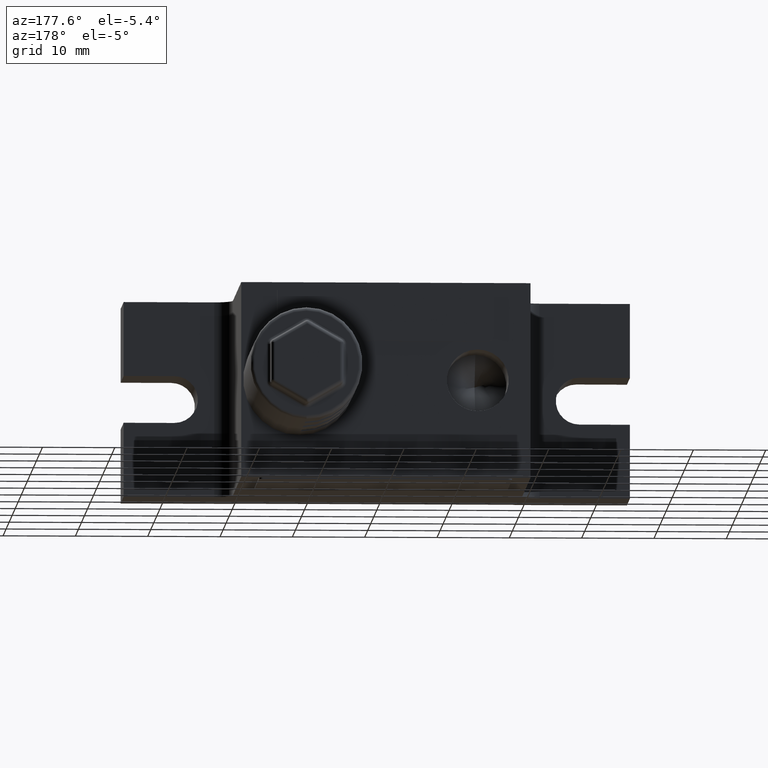
[diagram: clean part render]
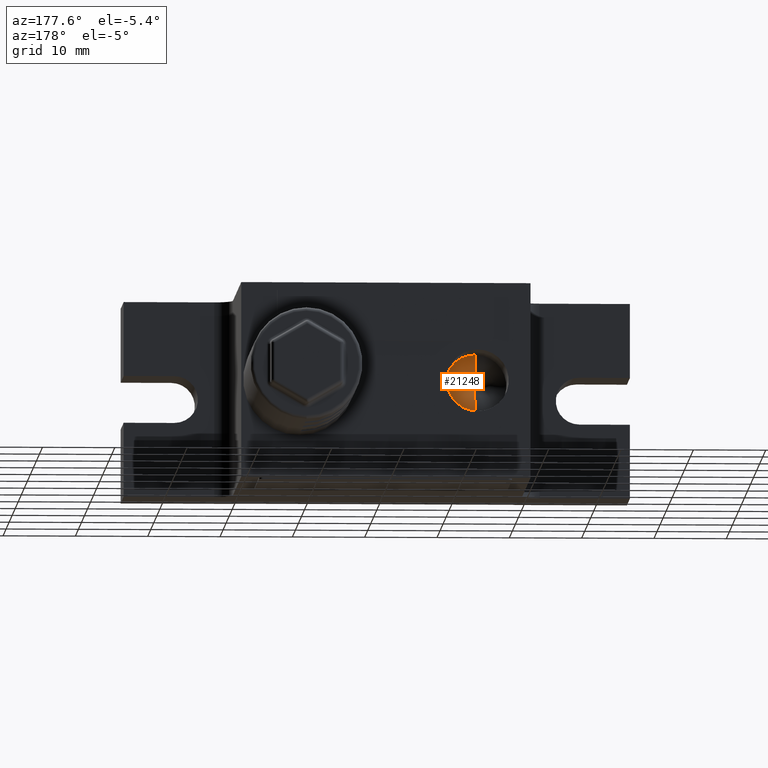
[diagram: same view with one face highlighted and labeled with its STEP entity id]
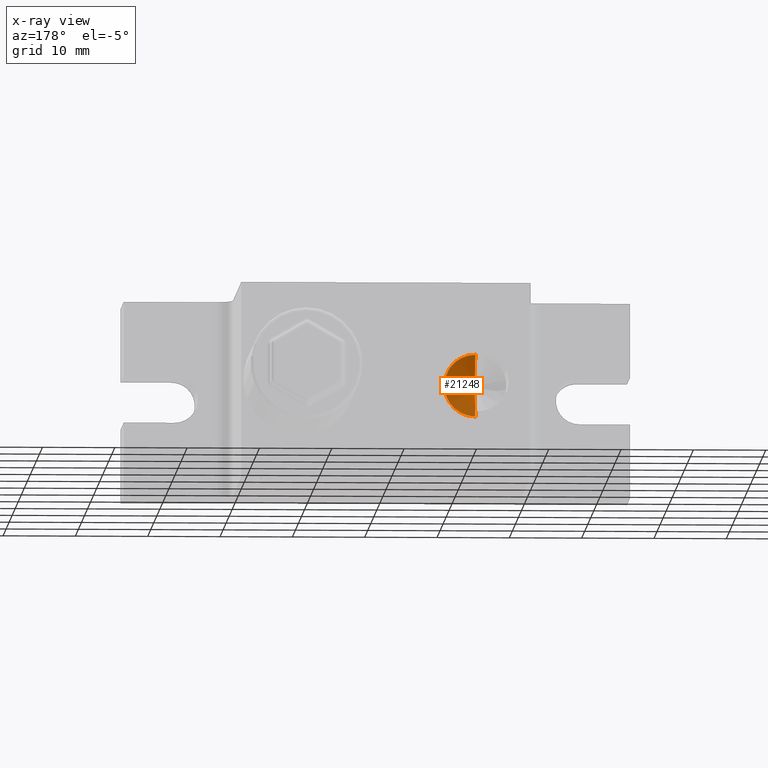
[diagram: x-ray of the same camera — body ghosted, the highlighted face saturated]
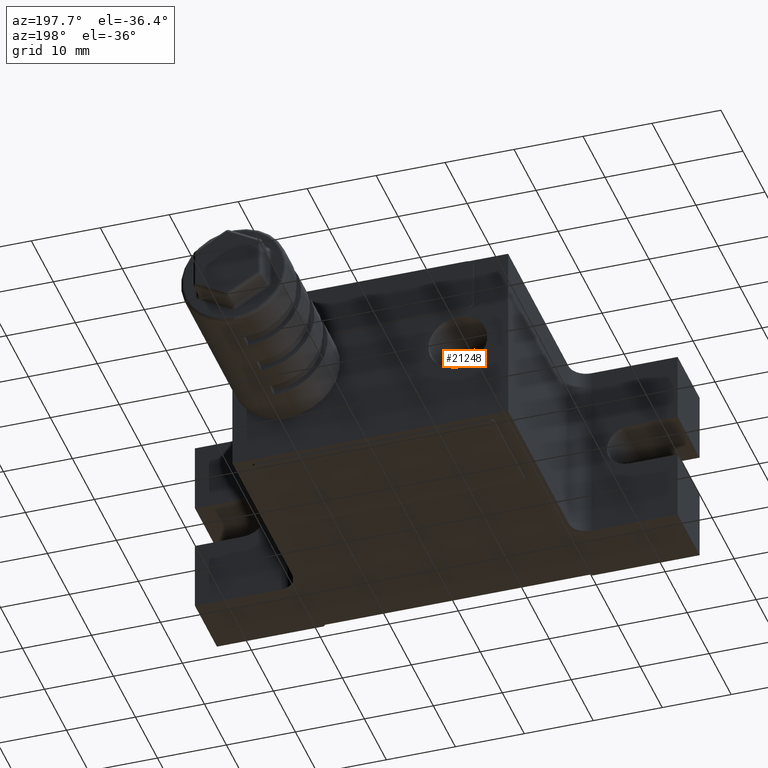
[diagram: same view with one face highlighted and labeled with its STEP entity id]
A machine part, auxiliary view. The second image highlights one B-rep face of the part: STEP entity #21248.
The next image is the same camera in x-ray: the body ghosted, the highlighted face saturated — about 0% of this face is hidden behind the body in this view.
A second angle (auxiliary view) of the same face is appended — the face is thin or edge-on in the first view.
In plain terms, the highlighted conical surface has half-angle 59 deg.
Its self-contained STEP definition (entity closure, byte-faithful):
#32 = EDGE_CURVE ( 'NONE', #14881, #23041, #12082, .T. ) ;
#237 = CARTESIAN_POINT ( 'NONE',  ( -12.69999999999999900, 12.00000000000000000, -4.283000000000000400 ) ) ;
#502 = CARTESIAN_POINT ( 'NONE',  ( -12.69999999999999900, 12.00000000000000000, 0.0000000000000000000 ) ) ;
#1025 = EDGE_CURVE ( 'NONE', #7732, #23041, #9744, .T. ) ;
#1799 = DIRECTION ( 'NONE',  ( 1.049727191138618200E-016, 0.5150380749100549300, -0.8571673007021118900 ) ) ;
#2380 = AXIS2_PLACEMENT_3D ( 'NONE', #20241, #18403, #3966 ) ;
#2454 = CARTESIAN_POINT ( 'NONE',  ( -12.69999999999999900, 12.00000000000000000, 4.283000000000000400 ) ) ;
#3966 = DIRECTION ( 'NONE',  ( 0.0000000000000000000, 0.0000000000000000000, 1.000000000000000000 ) ) ;
#5404 = EDGE_CURVE ( 'NONE', #7732, #14881, #14014, .T. ) ;
#5721 = ORIENTED_EDGE ( 'NONE', *, *, #1025, .F. ) ;
#7732 = VERTEX_POINT ( 'NONE', #8683 ) ;
#8683 = CARTESIAN_POINT ( 'NONE',  ( -12.69999999999999900, 9.426513968704950800, 0.0000000000000000000 ) ) ;
#9060 = ORIENTED_EDGE ( 'NONE', *, *, #5404, .T. ) ;
#9744 = LINE ( 'NONE', #237, #20340 ) ;
#10152 = FACE_OUTER_BOUND ( 'NONE', #21909, .T. ) ;
#11276 = CARTESIAN_POINT ( 'NONE',  ( -12.69999999999999900, 12.00000000000000000, 4.283000000000000400 ) ) ;
#12082 = CIRCLE ( 'NONE', #22952, 4.283000000000000400 ) ;
#12859 = VECTOR ( 'NONE', #16908, 999.9999999999998900 ) ;
#13794 = CARTESIAN_POINT ( 'NONE',  ( -12.69999999999999900, 12.00000000000000000, -4.283000000000000400 ) ) ;
#14014 = LINE ( 'NONE', #2454, #12859 ) ;
#14881 = VERTEX_POINT ( 'NONE', #11276 ) ;
#15231 = DIRECTION ( 'NONE',  ( 0.0000000000000000000, 0.0000000000000000000, 1.000000000000000000 ) ) ;
#15296 = ORIENTED_EDGE ( 'NONE', *, *, #32, .T. ) ;
#16908 = DIRECTION ( 'NONE',  ( 0.0000000000000000000, 0.5150380749100549300, 0.8571673007021118900 ) ) ;
#18403 = DIRECTION ( 'NONE',  ( 0.0000000000000000000, 1.000000000000000000, 0.0000000000000000000 ) ) ;
#19315 = CONICAL_SURFACE ( 'NONE', #2380, 4.283000000000000400, 1.029744258676653600 ) ;
#20241 = CARTESIAN_POINT ( 'NONE',  ( -12.69999999999999900, 12.00000000000000000, 0.0000000000000000000 ) ) ;
#20340 = VECTOR ( 'NONE', #1799, 999.9999999999998900 ) ;
#21248 = ADVANCED_FACE ( 'NONE', ( #10152 ), #19315, .F. ) ;
#21909 = EDGE_LOOP ( 'NONE', ( #5721, #9060, #15296 ) ) ;
#22269 = DIRECTION ( 'NONE',  ( 0.0000000000000000000, 1.000000000000000000, 0.0000000000000000000 ) ) ;
#22952 = AXIS2_PLACEMENT_3D ( 'NONE', #502, #22269, #15231 ) ;
#23041 = VERTEX_POINT ( 'NONE', #13794 ) ;